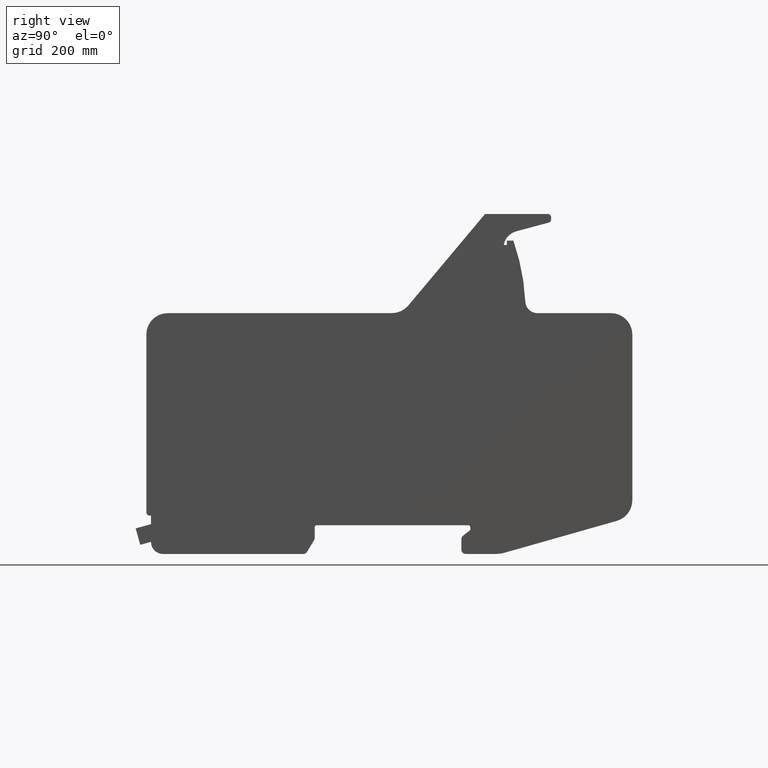
[diagram: clean part render]
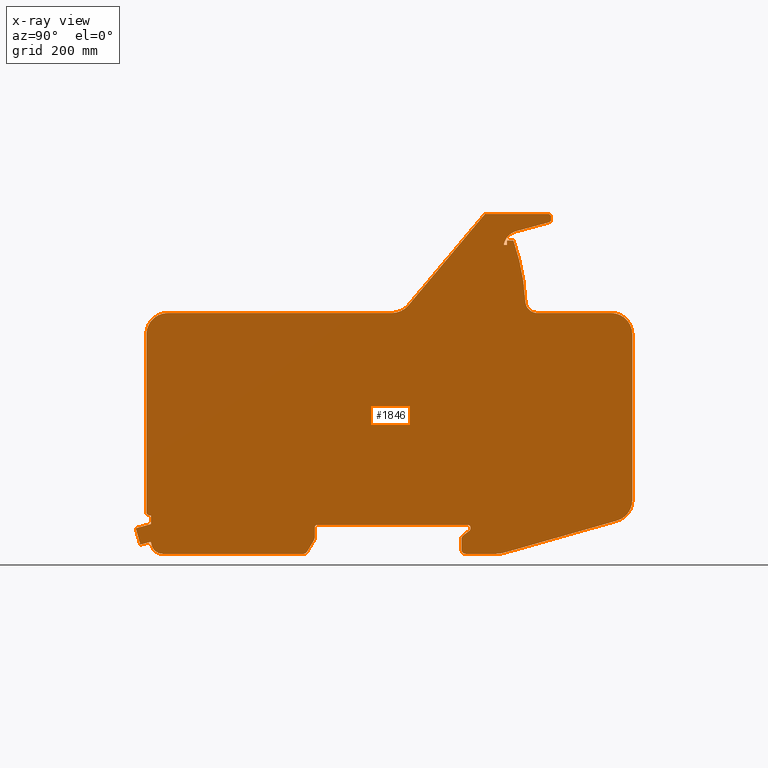
[diagram: x-ray — body ghosted, one internal face saturated and labeled with its STEP entity id]
A machine part, right view, then the same camera in x-ray: the body is ghosted and one INTERNAL B-rep face — a face not visible from any outside direction — is saturated and labeled: STEP entity #1846.
In plain terms, the highlighted planar face has unit normal (1, 0, 0).
Its self-contained STEP definition (entity closure, byte-faithful):
#313=CARTESIAN_POINT('',(325.00000000000011,-769.29424544863309,-46.040716385097973));
#314=VERTEX_POINT('',#313);
#315=CARTESIAN_POINT('',(325.00000000000011,-780.00000000017224,-7.500000000181544));
#316=VERTEX_POINT('',#315);
#317=CARTESIAN_POINT('',(325.00000000000011,-769.29424544863309,-46.040716385097973));
#318=DIRECTION('',(0.0,-0.267643863790121,0.963517909628822));
#319=VECTOR('',#318,39.999999999754586);
#320=LINE('',#317,#319);
#321=EDGE_CURVE('',#314,#316,#320,.T.);
#353=CARTESIAN_POINT('',(325.00000000000011,-743.99999999999977,2.500000000000178));
#354=VERTEX_POINT('',#353);
#355=CARTESIAN_POINT('',(325.00000000000011,-780.00000000017224,-7.500000000181544));
#356=DIRECTION('',(0.0,0.963517909629017,0.26764386378942));
#357=VECTOR('',#356,37.363083384753615);
#358=LINE('',#355,#357);
#359=EDGE_CURVE('',#316,#354,#358,.T.);
#384=CARTESIAN_POINT('',(325.00000000000011,-743.99999999999977,22.500000000000036));
#385=VERTEX_POINT('',#384);
#386=CARTESIAN_POINT('',(325.00000000000011,-743.99999999999977,2.500000000000178));
#387=DIRECTION('',(0.0,0.0,1.0));
#388=VECTOR('',#387,19.999999999999858);
#389=LINE('',#386,#388);
#390=EDGE_CURVE('',#354,#385,#389,.T.);
#415=CARTESIAN_POINT('',(325.00000000000011,-746.99999999999989,22.499999999999815));
#416=VERTEX_POINT('',#415);
#417=CARTESIAN_POINT('',(325.00000000000011,-743.99999999999977,22.500000000000036));
#418=DIRECTION('',(0.0,-1.0,0.0));
#419=VECTOR('',#418,3.000000000000114);
#420=LINE('',#417,#419);
#421=EDGE_CURVE('',#385,#416,#420,.T.);
#446=CARTESIAN_POINT('',(325.00000000000011,-755.0,30.499999999999936));
#447=VERTEX_POINT('',#446);
#448=CARTESIAN_POINT('',(325.00000000000011,-746.99999999999989,30.499999999999918));
#449=DIRECTION('',(-1.0,0.0,0.0));
#450=DIRECTION('',(0.0,-0.707106781186548,-0.707106781186547));
#451=AXIS2_PLACEMENT_3D('',#448,#449,#450);
#452=CIRCLE('',#451,8.000000000000105);
#453=EDGE_CURVE('',#416,#447,#452,.T.);
#479=CARTESIAN_POINT('',(325.00000000000011,-755.0,447.5));
#480=VERTEX_POINT('',#479);
#481=CARTESIAN_POINT('',(325.00000000000011,-755.0,30.499999999999936));
#482=DIRECTION('',(0.0,0.0,1.0));
#483=VECTOR('',#482,417.0);
#484=LINE('',#481,#483);
#485=EDGE_CURVE('',#447,#480,#484,.T.);
#510=CARTESIAN_POINT('',(325.00000000000011,-705.0,497.50000000000011));
#511=VERTEX_POINT('',#510);
#512=CARTESIAN_POINT('',(325.00000000000011,-705.0,447.50000000000011));
#513=DIRECTION('',(-1.0,0.0,0.0));
#514=DIRECTION('',(0.0,-0.707106781186549,0.707106781186546));
#515=AXIS2_PLACEMENT_3D('',#512,#513,#514);
#516=CIRCLE('',#515,50.000000000000007);
#517=EDGE_CURVE('',#480,#511,#516,.T.);
#543=CARTESIAN_POINT('',(325.00000000000011,-178.47690988319982,497.50000000000011));
#544=VERTEX_POINT('',#543);
#545=CARTESIAN_POINT('',(325.00000000000011,-705.0,497.50000000000011));
#546=DIRECTION('',(0.0,1.0,0.0));
#547=VECTOR('',#546,526.52309011680018);
#548=LINE('',#545,#547);
#549=EDGE_CURVE('',#511,#544,#548,.T.);
#574=CARTESIAN_POINT('',(325.00000000000011,-140.51277227641719,515.3693869011812));
#575=VERTEX_POINT('',#574);
#576=CARTESIAN_POINT('',(325.00000000000011,-178.82641248820676,547.50529319541261));
#577=DIRECTION('',(1.0,0.0,0.0));
#578=DIRECTION('',(0.0,0.425873332777177,-0.904782794061238));
#579=AXIS2_PLACEMENT_3D('',#576,#577,#578);
#580=CIRCLE('',#579,50.006514571904255);
#581=EDGE_CURVE('',#544,#575,#580,.T.);
#607=CARTESIAN_POINT('',(325.00000000000011,39.500000000002728,729.99999999999784));
#608=VERTEX_POINT('',#607);
#609=CARTESIAN_POINT('',(325.00000000000011,-140.51277227641719,515.3693869011812));
#610=DIRECTION('',(0.0,0.642612261976457,0.766191543125805));
#611=VECTOR('',#610,280.12657542942287);
#612=LINE('',#609,#611);
#613=EDGE_CURVE('',#575,#608,#612,.T.);
#638=CARTESIAN_POINT('',(325.00000000000011,187.00000000000045,730.0));
#639=VERTEX_POINT('',#638);
#640=CARTESIAN_POINT('',(325.00000000000011,39.500000000002728,729.99999999999784));
#641=DIRECTION('',(0.0,1.0,0.0));
#642=VECTOR('',#641,147.49999999999773);
#643=LINE('',#640,#642);
#644=EDGE_CURVE('',#608,#639,#643,.T.);
#669=CARTESIAN_POINT('',(325.00000000000011,194.50000000000045,722.50000000000011));
#670=VERTEX_POINT('',#669);
#671=CARTESIAN_POINT('',(325.00000000000011,187.00000000000045,722.50000000000011));
#672=DIRECTION('',(-1.0,0.0,0.0));
#673=DIRECTION('',(0.0,0.707106781186541,0.707106781186554));
#674=AXIS2_PLACEMENT_3D('',#671,#672,#673);
#675=CIRCLE('',#674,7.499999999999928);
#676=EDGE_CURVE('',#639,#670,#675,.T.);
#702=CARTESIAN_POINT('',(325.00000000000011,194.50000000000045,717.08014293780002));
#703=VERTEX_POINT('',#702);
#704=CARTESIAN_POINT('',(325.00000000000011,194.50000000000045,722.50000000000011));
#705=DIRECTION('',(0.0,0.0,-1.0));
#706=VECTOR('',#705,5.419857062200208);
#707=LINE('',#704,#706);
#708=EDGE_CURVE('',#670,#703,#707,.T.);
#733=CARTESIAN_POINT('',(325.00000000000011,188.94114283828685,709.83569924060805));
#734=VERTEX_POINT('',#733);
#735=CARTESIAN_POINT('',(325.00000000000011,186.99999999998681,717.08014293778194));
#736=DIRECTION('',(-1.0,0.0,0.0));
#737=DIRECTION('',(0.0,0.793353340293131,-0.60876142900625));
#738=AXIS2_PLACEMENT_3D('',#735,#736,#737);
#739=CIRCLE('',#738,7.50000000001369);
#740=EDGE_CURVE('',#703,#734,#739,.T.);
#766=CARTESIAN_POINT('',(325.00000000000011,112.45723819590467,689.34189875766424));
#767=VERTEX_POINT('',#766);
#768=CARTESIAN_POINT('',(325.00000000000011,188.94114283828685,709.83569924060805));
#769=DIRECTION('',(0.0,-0.965925826288947,-0.258819045102974));
#770=VECTOR('',#769,79.181964661024423);
#771=LINE('',#768,#770);
#772=EDGE_CURVE('',#734,#767,#771,.T.);
#797=CARTESIAN_POINT('',(325.00000000000011,83.355211224560435,657.28663163063993));
#798=VERTEX_POINT('',#797);
#799=CARTESIAN_POINT('',(325.00000000000011,122.81000000000006,650.70486570610024));
#800=DIRECTION('',(1.0,0.0,0.0));
#801=DIRECTION('',(0.0,-0.740389703690504,0.672177868327341));
#802=AXIS2_PLACEMENT_3D('',#799,#800,#801);
#803=CIRCLE('',#802,39.999999999999851);
#804=EDGE_CURVE('',#767,#798,#803,.T.);
#830=CARTESIAN_POINT('',(325.00000000000011,90.883730237300142,657.28663163063993));
#831=VERTEX_POINT('',#830);
#832=CARTESIAN_POINT('',(325.00000000000011,83.355211224560435,657.28663163063993));
#833=DIRECTION('',(0.0,1.0,0.0));
#834=VECTOR('',#833,7.528519012739707);
#835=LINE('',#832,#834);
#836=EDGE_CURVE('',#798,#831,#835,.T.);
#861=CARTESIAN_POINT('',(325.00000000000011,90.883730237300142,667.5));
#862=VERTEX_POINT('',#861);
#863=CARTESIAN_POINT('',(325.00000000000011,90.883730237300142,657.28663163063993));
#864=DIRECTION('',(0.0,0.0,1.0));
#865=VECTOR('',#864,10.213368369360069);
#866=LINE('',#863,#865);
#867=EDGE_CURVE('',#831,#862,#866,.T.);
#892=CARTESIAN_POINT('',(325.00000000000011,106.10000000001719,667.50000000000659));
#893=VERTEX_POINT('',#892);
#894=CARTESIAN_POINT('',(325.00000000000011,90.883730237300142,667.5));
#895=DIRECTION('',(0.0,1.0,4.258698E-013));
#896=VECTOR('',#895,15.216269762717047);
#897=LINE('',#894,#896);
#898=EDGE_CURVE('',#862,#893,#897,.T.);
#923=CARTESIAN_POINT('',(325.00000000000011,134.08516805846943,524.06517999302446));
#924=VERTEX_POINT('',#923);
#925=CARTESIAN_POINT('',(325.00000000000011,-383.6437371727925,497.4999999998937));
#926=DIRECTION('',(-1.0,0.0,0.0));
#927=DIRECTION('',(0.0,0.981493310834058,0.191496425000574));
#928=AXIS2_PLACEMENT_3D('',#925,#926,#927);
#929=CIRCLE('',#928,518.41000000002748);
#930=EDGE_CURVE('',#893,#924,#929,.T.);
#956=CARTESIAN_POINT('',(325.00000000000011,162.04838124200023,497.50000000000011));
#957=VERTEX_POINT('',#956);
#958=CARTESIAN_POINT('',(325.00000000000011,162.04838124200023,525.50000000000023));
#959=DIRECTION('',(1.0,0.0,0.0));
#960=DIRECTION('',(0.0,-0.688751199027013,-0.72499778333375));
#961=AXIS2_PLACEMENT_3D('',#958,#959,#960);
#962=CIRCLE('',#961,28.000000000000053);
#963=EDGE_CURVE('',#924,#957,#962,.T.);
#989=CARTESIAN_POINT('',(325.00000000000011,335.0,497.49999999999989));
#990=VERTEX_POINT('',#989);
#991=CARTESIAN_POINT('',(325.00000000000011,162.04838124200023,497.50000000000011));
#992=DIRECTION('',(0.0,1.0,0.0));
#993=VECTOR('',#992,172.95161875799977);
#994=LINE('',#991,#993);
#995=EDGE_CURVE('',#957,#990,#994,.T.);
#1020=CARTESIAN_POINT('',(325.00000000000011,385.0,447.50000000000011));
#1021=VERTEX_POINT('',#1020);
#1022=CARTESIAN_POINT('',(325.00000000000011,335.0,447.49999999999989));
#1023=DIRECTION('',(-1.0,0.0,0.0));
#1024=DIRECTION('',(0.0,0.707106781186546,0.707106781186549));
#1025=AXIS2_PLACEMENT_3D('',#1022,#1023,#1024);
#1026=CIRCLE('',#1025,49.999999999999929);
#1027=EDGE_CURVE('',#990,#1021,#1026,.T.);
#1053=CARTESIAN_POINT('',(325.00000000000011,385.0,58.28199216629983));
#1054=VERTEX_POINT('',#1053);
#1055=CARTESIAN_POINT('',(325.00000000000011,385.0,447.50000000000011));
#1056=DIRECTION('',(0.0,0.0,-1.0));
#1057=VECTOR('',#1056,389.21800783370031);
#1058=LINE('',#1055,#1057);
#1059=EDGE_CURVE('',#1021,#1054,#1058,.T.);
#1084=CARTESIAN_POINT('',(325.00000000000011,348.65406519679937,10.182444313917918));
#1085=VERTEX_POINT('',#1084);
#1086=CARTESIAN_POINT('',(325.00000000000011,334.99999999998977,58.281992166286514));
#1087=DIRECTION('',(-1.0,0.0,0.0));
#1088=DIRECTION('',(0.0,0.797834977904702,-0.602875897703502));
#1089=AXIS2_PLACEMENT_3D('',#1086,#1087,#1088);
#1090=CIRCLE('',#1089,50.000000000010239);
#1091=EDGE_CURVE('',#1054,#1085,#1090,.T.);
#1117=CARTESIAN_POINT('',(325.00000000000011,85.711639377584561,-64.459276563776129));
#1118=VERTEX_POINT('',#1117);
#1119=CARTESIAN_POINT('',(325.00000000000011,348.65406519679937,10.182444313917918));
#1120=DIRECTION('',(0.0,-0.961990957047236,-0.273081303935922));
#1121=VECTOR('',#1120,273.33149432745012);
#1122=LINE('',#1119,#1121);
#1123=EDGE_CURVE('',#1085,#1118,#1122,.T.);
#1148=CARTESIAN_POINT('',(325.00000000000011,63.865135062700347,-67.499999999999929));
#1149=VERTEX_POINT('',#1148);
#1150=CARTESIAN_POINT('',(325.00000000000011,63.865135062701484,12.49999999999992));
#1151=DIRECTION('',(-1.0,0.0,0.0));
#1152=DIRECTION('',(0.0,0.137856887663972,-0.990452158624334));
#1153=AXIS2_PLACEMENT_3D('',#1150,#1151,#1152);
#1154=CIRCLE('',#1153,79.999999999999858);
#1155=EDGE_CURVE('',#1118,#1149,#1154,.T.);
#1181=CARTESIAN_POINT('',(325.00000000000011,-6.000000000000227,-67.500000000000142));
#1182=VERTEX_POINT('',#1181);
#1183=CARTESIAN_POINT('',(325.00000000000011,63.865135062700347,-67.499999999999929));
#1184=DIRECTION('',(0.0,-1.0,0.0));
#1185=VECTOR('',#1184,69.865135062700574);
#1186=LINE('',#1183,#1185);
#1187=EDGE_CURVE('',#1149,#1182,#1186,.T.);
#1212=CARTESIAN_POINT('',(325.00000000000011,-16.000000000000227,-57.499999999999943));
#1213=VERTEX_POINT('',#1212);
#1214=CARTESIAN_POINT('',(325.00000000000011,-6.000000000000227,-57.500000000000107));
#1215=DIRECTION('',(-1.0,0.0,0.0));
#1216=DIRECTION('',(0.0,-0.707106781186554,-0.707106781186541));
#1217=AXIS2_PLACEMENT_3D('',#1214,#1215,#1216);
#1218=CIRCLE('',#1217,10.000000000000034);
#1219=EDGE_CURVE('',#1182,#1213,#1218,.T.);
#1245=CARTESIAN_POINT('',(325.00000000000011,-16.000000000000227,-32.452741697599947));
#1246=VERTEX_POINT('',#1245);
#1247=CARTESIAN_POINT('',(325.00000000000011,-16.000000000000227,-57.499999999999943));
#1248=DIRECTION('',(0.0,0.0,1.0));
#1249=VECTOR('',#1248,25.047258302399996);
#1250=LINE('',#1247,#1249);
#1251=EDGE_CURVE('',#1213,#1246,#1250,.T.);
#1276=CARTESIAN_POINT('',(325.00000000000011,-12.060432152617295,-24.498424497223219));
#1277=VERTEX_POINT('',#1276);
#1278=CARTESIAN_POINT('',(325.00000000000011,-5.999999999983174,-32.452741697565422));
#1279=DIRECTION('',(-1.0,0.0,0.0));
#1280=DIRECTION('',(0.0,-0.896114729056812,0.443822478438663));
#1281=AXIS2_PLACEMENT_3D('',#1278,#1279,#1280);
#1282=CIRCLE('',#1281,10.000000000017076);
#1283=EDGE_CURVE('',#1246,#1277,#1282,.T.);
#1309=CARTESIAN_POINT('',(325.00000000000011,3.030216076311945,-13.0007877513642));
#1310=VERTEX_POINT('',#1309);
#1311=CARTESIAN_POINT('',(325.00000000000011,-12.060432152617295,-24.498424497223219));
#1312=DIRECTION('',(0.0,0.795431720032291,0.606043215263129));
#1313=VECTOR('',#1312,18.97164501852733);
#1314=LINE('',#1311,#1313);
#1315=EDGE_CURVE('',#1277,#1310,#1314,.T.);
#1340=CARTESIAN_POINT('',(325.00000000000011,5.0,-9.023629151199904));
#1341=VERTEX_POINT('',#1340);
#1342=CARTESIAN_POINT('',(325.00000000000011,0.0,-9.023629151199923));
#1343=DIRECTION('',(1.0,0.0,0.0));
#1344=DIRECTION('',(0.0,0.896114729056049,-0.443822478440202));
#1345=AXIS2_PLACEMENT_3D('',#1342,#1343,#1344);
#1346=CIRCLE('',#1345,5.000000000000008);
#1347=EDGE_CURVE('',#1310,#1341,#1346,.T.);
#1373=CARTESIAN_POINT('',(325.00000000000011,5.0,-5.000000000000142));
#1374=VERTEX_POINT('',#1373);
#1375=CARTESIAN_POINT('',(325.00000000000011,5.0,-9.023629151199904));
#1376=DIRECTION('',(0.0,0.0,1.0));
#1377=VECTOR('',#1376,4.023629151199762);
#1378=LINE('',#1375,#1377);
#1379=EDGE_CURVE('',#1341,#1374,#1378,.T.);
#1404=CARTESIAN_POINT('',(325.00000000000011,0.0,0.0));
#1405=VERTEX_POINT('',#1404);
#1406=CARTESIAN_POINT('',(325.00000000000011,0.0,-5.000000000000011));
#1407=DIRECTION('',(1.0,0.0,0.0));
#1408=DIRECTION('',(0.0,0.707106781186558,0.707106781186537));
#1409=AXIS2_PLACEMENT_3D('',#1406,#1407,#1408);
#1410=CIRCLE('',#1409,5.000000000000012);
#1411=EDGE_CURVE('',#1374,#1405,#1410,.T.);
#1437=CARTESIAN_POINT('',(325.00000000000011,-355.0,-1.065814E-013));
#1438=VERTEX_POINT('',#1437);
#1439=CARTESIAN_POINT('',(325.00000000000011,0.0,0.0));
#1440=DIRECTION('',(0.0,-1.0,0.0));
#1441=VECTOR('',#1440,355.0);
#1442=LINE('',#1439,#1441);
#1443=EDGE_CURVE('',#1405,#1438,#1442,.T.);
#1468=CARTESIAN_POINT('',(325.00000000000011,-360.0,-4.999999999999955));
#1469=VERTEX_POINT('',#1468);
#1470=CARTESIAN_POINT('',(325.00000000000011,-355.0,-5.000000000000089));
#1471=DIRECTION('',(1.0,0.0,0.0));
#1472=DIRECTION('',(0.0,-0.707106781186537,0.707106781186558));
#1473=AXIS2_PLACEMENT_3D('',#1470,#1471,#1472);
#1474=CIRCLE('',#1473,4.999999999999981);
#1475=EDGE_CURVE('',#1438,#1469,#1474,.T.);
#1501=CARTESIAN_POINT('',(325.00000000000011,-360.0,-29.730160350500086));
#1502=VERTEX_POINT('',#1501);
#1503=CARTESIAN_POINT('',(325.00000000000011,-360.0,-4.999999999999955));
#1504=DIRECTION('',(0.0,0.0,-1.0));
#1505=VECTOR('',#1504,24.730160350500128);
#1506=LINE('',#1503,#1505);
#1507=EDGE_CURVE('',#1469,#1502,#1506,.T.);
#1532=CARTESIAN_POINT('',(325.00000000000011,-361.42507074288403,-34.875117904789583));
#1533=VERTEX_POINT('',#1532);
#1534=CARTESIAN_POINT('',(325.00000000000011,-369.99999999999943,-29.730160350499052));
#1535=DIRECTION('',(-1.0,0.0,0.0));
#1536=DIRECTION('',(0.0,0.963714928210508,-0.266933581896724));
#1537=AXIS2_PLACEMENT_3D('',#1534,#1535,#1536);
#1538=CIRCLE('',#1537,9.999999999999826);
#1539=EDGE_CURVE('',#1502,#1533,#1538,.T.);
#1565=CARTESIAN_POINT('',(325.00000000000011,-378.08697453258333,-62.644957554289995));
#1566=VERTEX_POINT('',#1565);
#1567=CARTESIAN_POINT('',(325.00000000000011,-361.42507074288403,-34.875117904789583));
#1568=DIRECTION('',(0.0,-0.514495755427512,-0.857492925712553));
#1569=VECTOR('',#1568,32.384919824760438);
#1570=LINE('',#1567,#1569);
#1571=EDGE_CURVE('',#1533,#1566,#1570,.T.);
#1596=CARTESIAN_POINT('',(325.00000000000011,-386.66190378969986,-67.500000000000128));
#1597=VERTEX_POINT('',#1596);
#1598=CARTESIAN_POINT('',(325.00000000000011,-386.66190378970043,-57.500000000000099));
#1599=DIRECTION('',(-1.0,0.0,0.0));
#1600=DIRECTION('',(0.0,0.492698814982858,-0.870199906753895));
#1601=AXIS2_PLACEMENT_3D('',#1598,#1599,#1600);
#1602=CIRCLE('',#1601,10.000000000000025);
#1603=EDGE_CURVE('',#1566,#1597,#1602,.T.);
#1629=CARTESIAN_POINT('',(325.00000000000011,-716.00000000000023,-67.500000000000142));
#1630=VERTEX_POINT('',#1629);
#1631=CARTESIAN_POINT('',(325.00000000000011,-386.66190378969986,-67.500000000000128));
#1632=DIRECTION('',(0.0,-1.0,0.0));
#1633=VECTOR('',#1632,329.33809621030036);
#1634=LINE('',#1631,#1633);
#1635=EDGE_CURVE('',#1597,#1630,#1634,.T.);
#1660=CARTESIAN_POINT('',(325.00000000000011,-744.00000000000034,-39.499999999999986));
#1661=VERTEX_POINT('',#1660);
#1662=CARTESIAN_POINT('',(325.00000000000011,-716.00000000000023,-39.500000000000028));
#1663=DIRECTION('',(-1.0,0.0,0.0));
#1664=DIRECTION('',(0.0,-0.707106781186548,-0.707106781186547));
#1665=AXIS2_PLACEMENT_3D('',#1662,#1663,#1664);
#1666=CIRCLE('',#1665,28.000000000000114);
#1667=EDGE_CURVE('',#1630,#1661,#1666,.T.);
#1693=CARTESIAN_POINT('',(325.00000000000011,-743.99999999999977,-39.014537093899939));
#1694=VERTEX_POINT('',#1693);
#1695=CARTESIAN_POINT('',(325.00000000000011,-744.00000000000034,-39.499999999999986));
#1696=DIRECTION('',(0.0,1.170912E-012,1.0));
#1697=VECTOR('',#1696,0.485462906100047);
#1698=LINE('',#1695,#1697);
#1699=EDGE_CURVE('',#1661,#1694,#1698,.T.);
#1724=CARTESIAN_POINT('',(325.00000000000011,-743.99999999999977,-39.014537093899939));
#1725=DIRECTION('',(0.0,-0.963517909630815,-0.267643863782947));
#1726=VECTOR('',#1725,26.251972273483901);
#1727=LINE('',#1724,#1726);
#1728=EDGE_CURVE('',#1694,#314,#1727,.T.);
#1794=CARTESIAN_POINT('',(325.00000000000011,-769.29424544863309,-46.040716385097973));
#1795=DIRECTION('',(1.0,0.0,0.0));
#1796=DIRECTION('',(0.0,0.0,-1.0));
#1797=AXIS2_PLACEMENT_3D('',#1794,#1795,#1796);
#1798=PLANE('',#1797);
#1799=ORIENTED_EDGE('',*,*,#321,.F.);
#1800=ORIENTED_EDGE('',*,*,#1728,.F.);
#1801=ORIENTED_EDGE('',*,*,#1699,.F.);
#1802=ORIENTED_EDGE('',*,*,#1667,.F.);
#1803=ORIENTED_EDGE('',*,*,#1635,.F.);
#1804=ORIENTED_EDGE('',*,*,#1603,.F.);
#1805=ORIENTED_EDGE('',*,*,#1571,.F.);
#1806=ORIENTED_EDGE('',*,*,#1539,.F.);
#1807=ORIENTED_EDGE('',*,*,#1507,.F.);
#1808=ORIENTED_EDGE('',*,*,#1475,.F.);
#1809=ORIENTED_EDGE('',*,*,#1443,.F.);
#1810=ORIENTED_EDGE('',*,*,#1411,.F.);
#1811=ORIENTED_EDGE('',*,*,#1379,.F.);
#1812=ORIENTED_EDGE('',*,*,#1347,.F.);
#1813=ORIENTED_EDGE('',*,*,#1315,.F.);
#1814=ORIENTED_EDGE('',*,*,#1283,.F.);
#1815=ORIENTED_EDGE('',*,*,#1251,.F.);
#1816=ORIENTED_EDGE('',*,*,#1219,.F.);
#1817=ORIENTED_EDGE('',*,*,#1187,.F.);
#1818=ORIENTED_EDGE('',*,*,#1155,.F.);
#1819=ORIENTED_EDGE('',*,*,#1123,.F.);
#1820=ORIENTED_EDGE('',*,*,#1091,.F.);
#1821=ORIENTED_EDGE('',*,*,#1059,.F.);
#1822=ORIENTED_EDGE('',*,*,#1027,.F.);
#1823=ORIENTED_EDGE('',*,*,#995,.F.);
#1824=ORIENTED_EDGE('',*,*,#963,.F.);
#1825=ORIENTED_EDGE('',*,*,#930,.F.);
#1826=ORIENTED_EDGE('',*,*,#898,.F.);
#1827=ORIENTED_EDGE('',*,*,#867,.F.);
#1828=ORIENTED_EDGE('',*,*,#836,.F.);
#1829=ORIENTED_EDGE('',*,*,#804,.F.);
#1830=ORIENTED_EDGE('',*,*,#772,.F.);
#1831=ORIENTED_EDGE('',*,*,#740,.F.);
#1832=ORIENTED_EDGE('',*,*,#708,.F.);
#1833=ORIENTED_EDGE('',*,*,#676,.F.);
#1834=ORIENTED_EDGE('',*,*,#644,.F.);
#1835=ORIENTED_EDGE('',*,*,#613,.F.);
#1836=ORIENTED_EDGE('',*,*,#581,.F.);
#1837=ORIENTED_EDGE('',*,*,#549,.F.);
#1838=ORIENTED_EDGE('',*,*,#517,.F.);
#1839=ORIENTED_EDGE('',*,*,#485,.F.);
#1840=ORIENTED_EDGE('',*,*,#453,.F.);
#1841=ORIENTED_EDGE('',*,*,#421,.F.);
#1842=ORIENTED_EDGE('',*,*,#390,.F.);
#1843=ORIENTED_EDGE('',*,*,#359,.F.);
#1844=EDGE_LOOP('',(#1799,#1800,#1801,#1802,#1803,#1804,#1805,#1806,#1807,#1808,#1809,#1810,#1811,#1812,#1813,#1814,#1815,#1816,#1817,#1818,#1819,#1820,#1821,#1822,#1823,#1824,#1825,#1826,#1827,#1828,#1829,#1830,#1831,#1832,#1833,#1834,#1835,#1836,#1837,#1838,#1839,#1840,#1841,#1842,#1843));
#1845=FACE_OUTER_BOUND('',#1844,.T.);
#1846=ADVANCED_FACE('',(#1845),#1798,.T.);